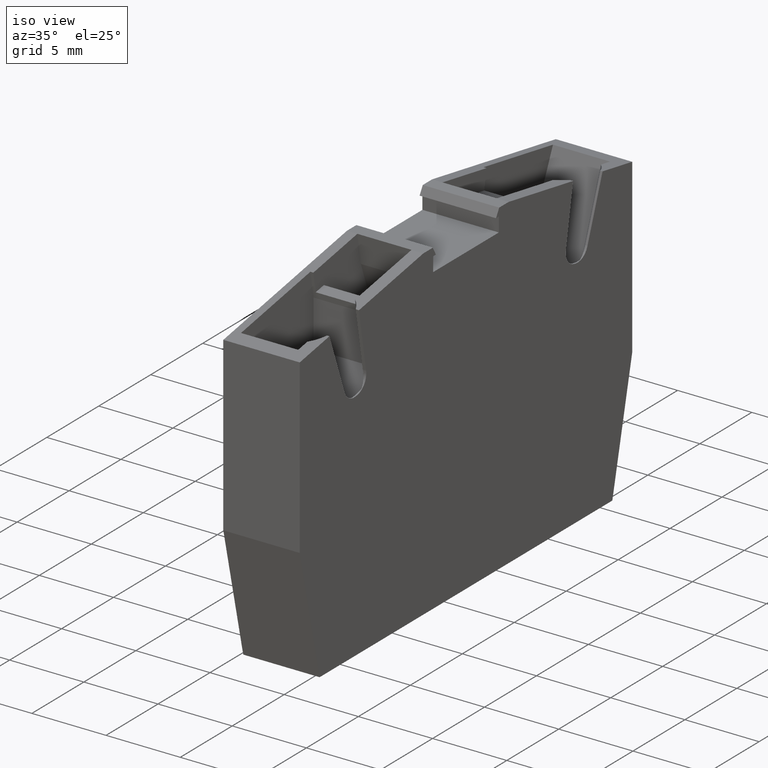
[diagram: clean part render]
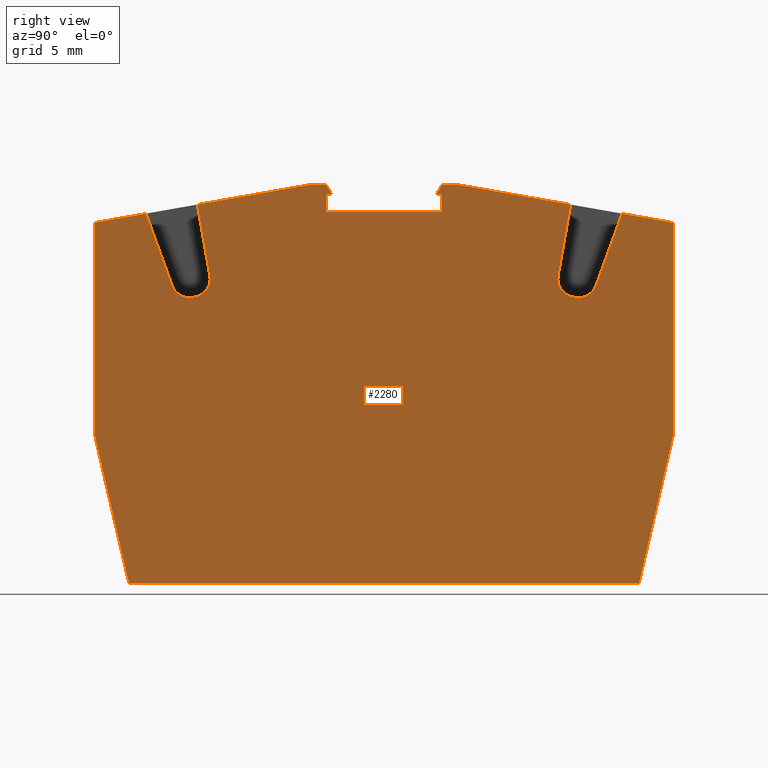
[diagram: tour spotlight — one face highlighted and labeled with its STEP entity id]
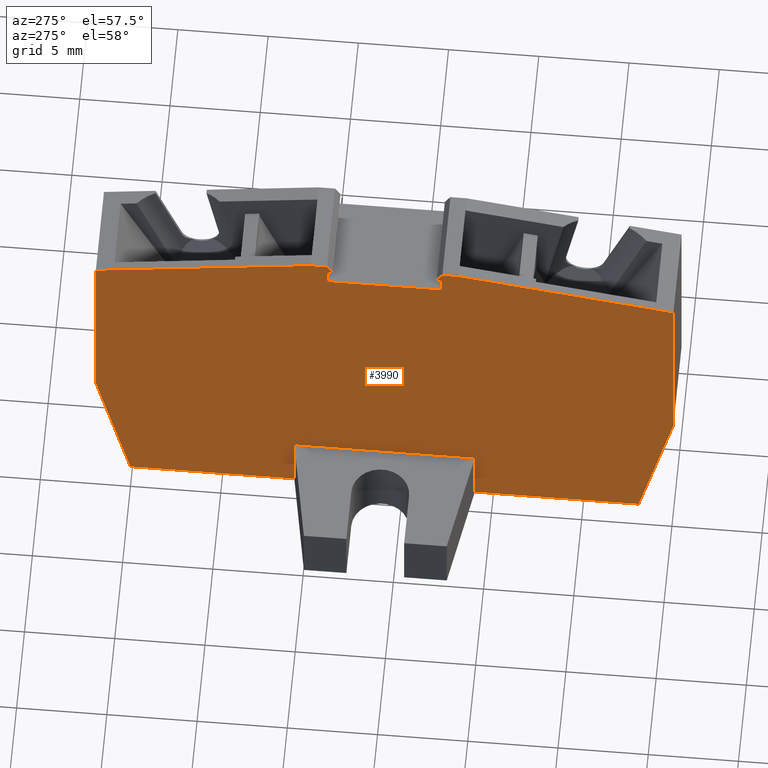
[diagram: tour spotlight — one face highlighted and labeled with its STEP entity id]
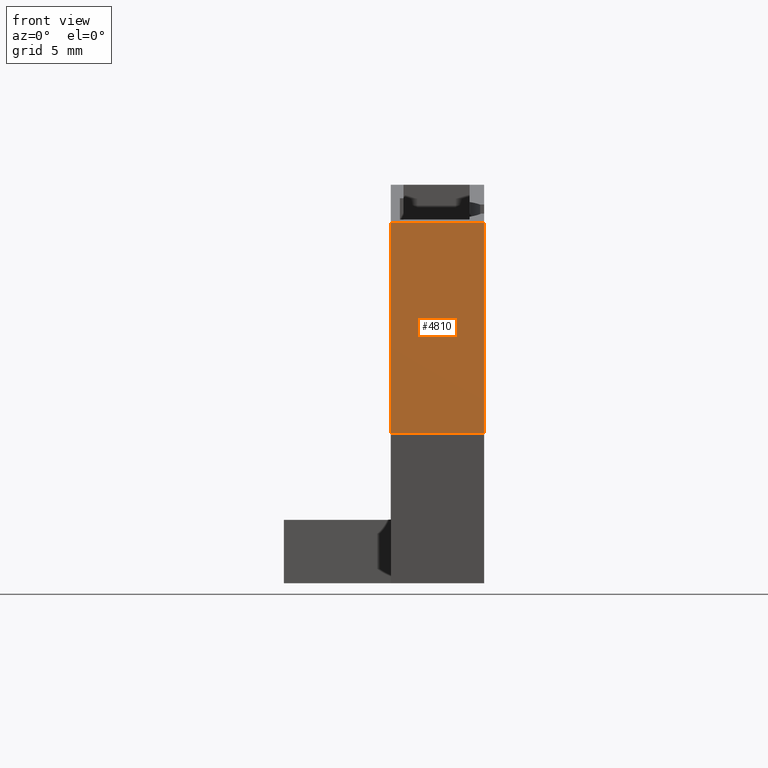
[diagram: tour spotlight — one face highlighted and labeled with its STEP entity id]
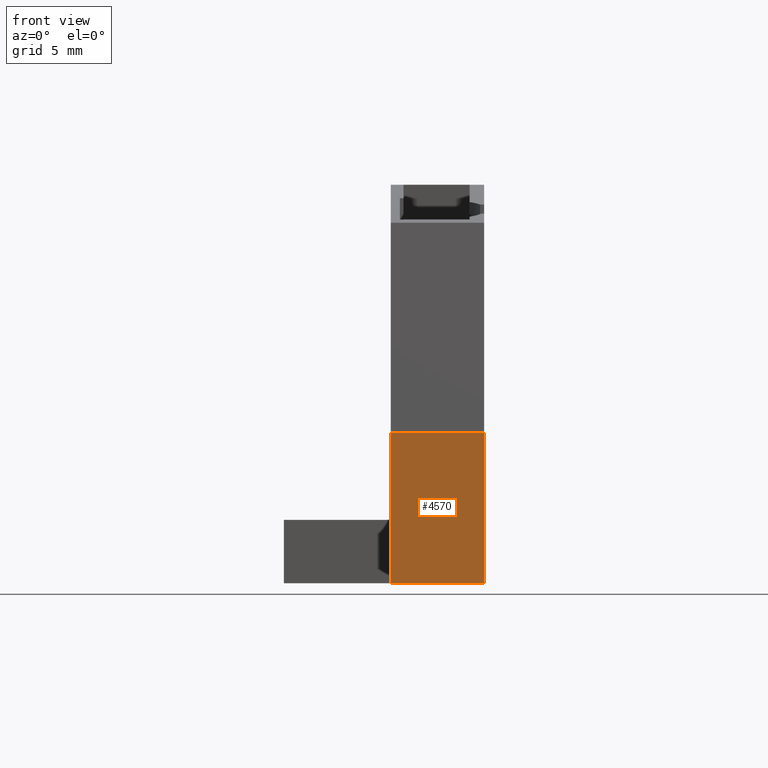
[diagram: tour spotlight — one face highlighted and labeled with its STEP entity id]
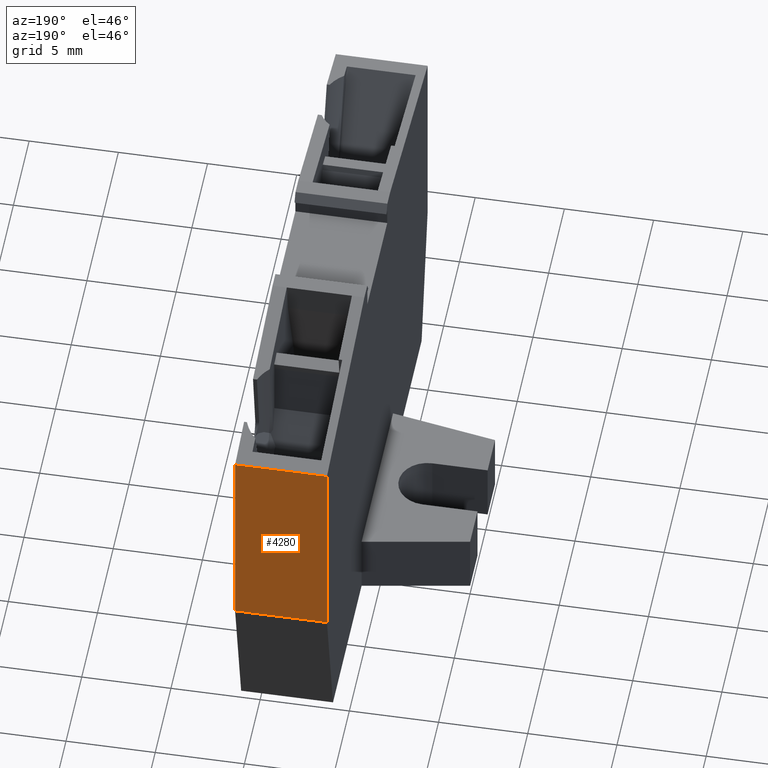
[diagram: tour spotlight — one face highlighted and labeled with its STEP entity id]
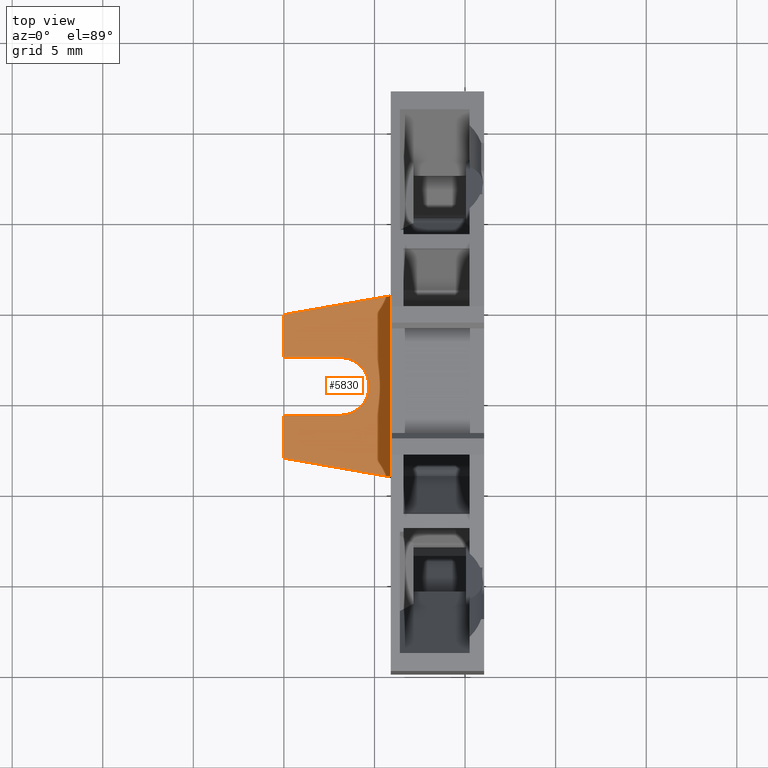
[diagram: tour spotlight — one face highlighted and labeled with its STEP entity id]
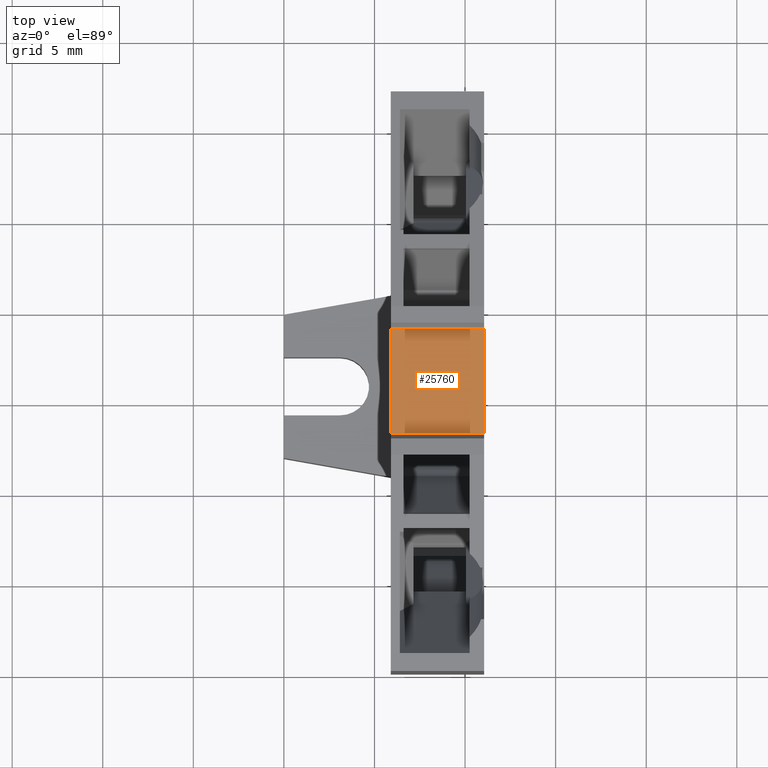
[diagram: tour spotlight — one face highlighted and labeled with its STEP entity id]
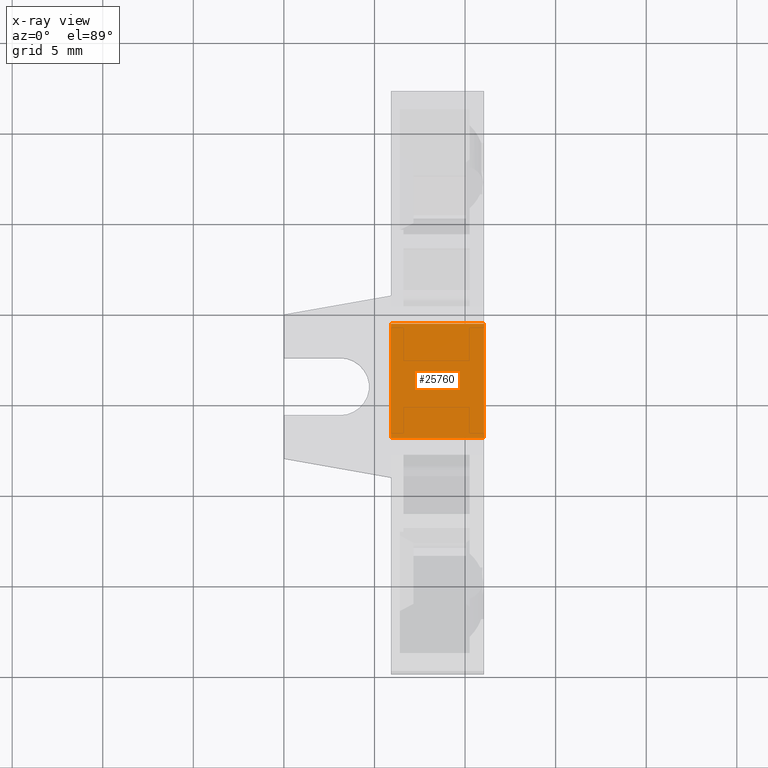
[diagram: x-ray of the same camera — body ghosted, this tour face saturated]
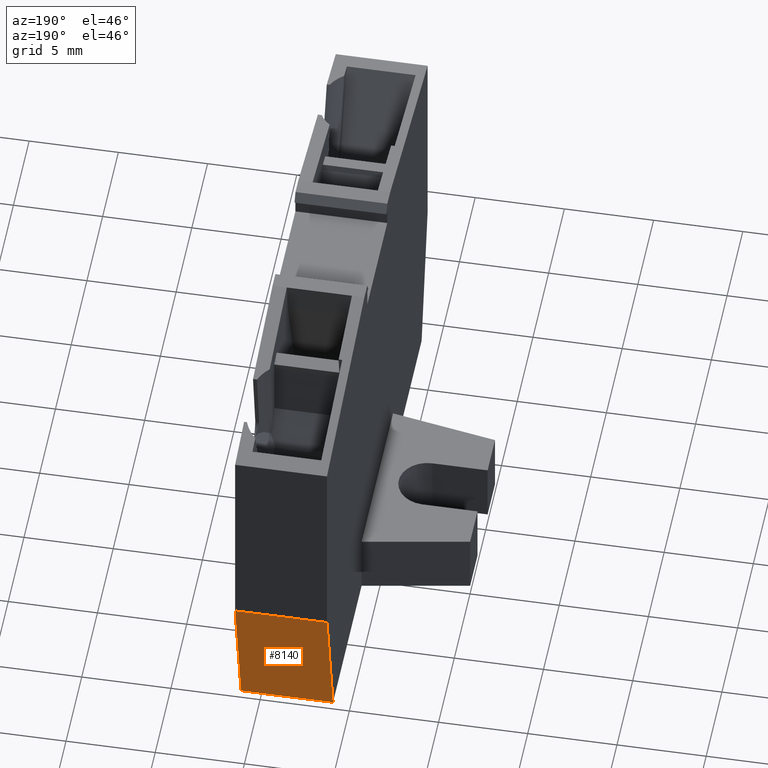
[diagram: tour spotlight — one face highlighted and labeled with its STEP entity id]
A machine part: a face-by-face anatomy tour. The part has 100 B-rep faces; the first image is the clean iso view, then the 8 largest visible faces are spotlighted one at a time (largest first), each with its STEP entity span.

Face 1 — right view, entity #2280. In plain terms, the highlighted planar face has unit normal (1, 0, -0).
Definition (entity closure, byte-faithful):
#10=CARTESIAN_POINT('',(8.03621504403304,131.836927118989,55.05));
#20=DIRECTION('',(0.,0.,-1.));
#30=DIRECTION('',(-1.,0.,0.));
#40=AXIS2_PLACEMENT_3D('',#10,#20,#30);
#50=PLANE('',#40);
#60=CARTESIAN_POINT('',(30.7687890493698,130.762530668224,55.05));
#70=DIRECTION('',(0.999390827019096,0.0348994967025093,
4.89331365738302E-15));
#80=VECTOR('',#70,1.);
#90=LINE('',#60,#80);
#100=CARTESIAN_POINT('',(0.0190285645123035,129.688725370406,55.05));
#110=VERTEX_POINT('',#100);
#120=CARTESIAN_POINT('',(8.53216352631667,129.986010594059,55.05));
#130=VERTEX_POINT('',#120);
#140=EDGE_CURVE('',#110,#130,#90,.T.);
#150=ORIENTED_EDGE('',*,*,#140,.T.);
#160=CARTESIAN_POINT('',(30.7687890493697,137.928098859774,55.05));
#170=DIRECTION('',(0.965925826289066,0.258819045102529,
4.08006961549743E-15));
#180=VECTOR('',#170,1.);
#190=LINE('',#160,#180);
#200=CARTESIAN_POINT('',(-11.187361719647,126.685982143697,55.05));
#210=VERTEX_POINT('',#200);
#220=EDGE_CURVE('',#210,#110,#190,.T.);
#230=ORIENTED_EDGE('',*,*,#220,.T.);
#240=CARTESIAN_POINT('',(-6.72796270864283,75.7148182090423,55.05));
#250=DIRECTION('',(-0.0871557427476667,0.996194698091745,
-3.30958753668609E-15));
#260=VECTOR('',#250,1.);
#270=LINE('',#240,#260);
#280=CARTESIAN_POINT('',(-10.9344408285838,123.795083130384,55.05));
#290=VERTEX_POINT('',#280);
#300=EDGE_CURVE('',#290,#210,#270,.T.);
#310=ORIENTED_EDGE('',*,*,#300,.T.);
#320=CARTESIAN_POINT('',(30.7687890493699,120.146523283648,
55.0500000000001));
#330=DIRECTION('',(0.996194698091747,-0.087155742747645,
5.22947730464687E-15));
#340=VECTOR('',#330,1.);
#350=LINE('',#320,#340);
#360=CARTESIAN_POINT('',(-6.71253439702414,123.425714179156,55.05));
#370=VERTEX_POINT('',#360);
#380=EDGE_CURVE('',#290,#370,#350,.T.);
#390=ORIENTED_EDGE('',*,*,#380,.F.);
#400=CARTESIAN_POINT('',(-6.79969013977176,122.429519481064,
55.0499999999999));
#410=DIRECTION('',(8.93808895116746E-15,-1.82904517099648E-15,-1.));
#420=DIRECTION('',(-1.,-1.31283872661925E-14,-8.93808895116744E-15));
#430=AXIS2_PLACEMENT_3D('',#400,#410,#420);
#440=CIRCLE('',#430,1.);
#450=CARTESIAN_POINT('',(-5.80349544168002,122.516675223812,55.05));
#460=VERTEX_POINT('',#450);
#470=EDGE_CURVE('',#370,#460,#440,.T.);
#480=ORIENTED_EDGE('',*,*,#470,.F.);
#490=CARTESIAN_POINT('',(-1.70886352092586,75.7148182090424,55.05));
#500=DIRECTION('',(0.0871557427476714,-0.996194698091744,
3.30958753668611E-15));
#510=VECTOR('',#500,1.);
#520=LINE('',#490,#510);
#530=CARTESIAN_POINT('',(-5.78947205052692,122.356387129469,55.05));
#540=VERTEX_POINT('',#530);
#550=EDGE_CURVE('',#460,#540,#520,.T.);
#560=ORIENTED_EDGE('',*,*,#550,.F.);
#570=CARTESIAN_POINT('',(-6.78566674861865,122.269231386722,
55.0499999999999));
#580=DIRECTION('',(8.93808895116746E-15,-1.82904517099648E-15,-1.));
#590=DIRECTION('',(-1.,-1.31283872661925E-14,-8.93808895116744E-15));
#600=AXIS2_PLACEMENT_3D('',#570,#580,#590);
#610=CIRCLE('',#600,1.);
#620=CARTESIAN_POINT('',(-6.69851100587099,121.27303668863,55.05));
#630=VERTEX_POINT('',#620);
#640=EDGE_CURVE('',#540,#630,#610,.T.);
#650=ORIENTED_EDGE('',*,*,#640,.F.);
#660=CARTESIAN_POINT('',(30.7687890493699,124.551000696388,
55.0500000000001));
#670=DIRECTION('',(0.996194698091744,0.0871557427476713,
4.72658084365674E-15));
#680=VECTOR('',#670,1.);
#690=LINE('',#660,#680);
#700=CARTESIAN_POINT('',(-10.683289798238,120.924413717639,55.05));
#710=VERTEX_POINT('',#700);
#720=EDGE_CURVE('',#710,#630,#690,.T.);
#730=ORIENTED_EDGE('',*,*,#720,.T.);
#740=CARTESIAN_POINT('',(-10.1342086189277,114.648387119661,55.05));
#750=VERTEX_POINT('',#740);
#760=EDGE_CURVE('',#750,#710,#270,.T.);
#770=ORIENTED_EDGE('',*,*,#760,.T.);
#780=CARTESIAN_POINT('',(0.298009729134481,75.7148182090424,
55.0500000000001));
#790=DIRECTION('',(-0.258819045102529,0.965925826289066,
-4.08006961549745E-15));
#800=VECTOR('',#790,1.);
#810=LINE('',#780,#800);
#820=CARTESIAN_POINT('',(-9.90028486570875,113.775371787551,55.05));
#830=VERTEX_POINT('',#820);
#840=EDGE_CURVE('',#830,#750,#810,.T.);
#850=ORIENTED_EDGE('',*,*,#840,.T.);
#860=CARTESIAN_POINT('',(30.76878904937,102.878126275405,
55.0500000000001));
#870=DIRECTION('',(0.965925826290974,-0.258819045095408,
5.57347874396752E-15));
#880=VECTOR('',#870,1.);
#890=LINE('',#860,#880);
#900=CARTESIAN_POINT('',(-9.30914667773229,113.616976787472,55.05));
#910=VERTEX_POINT('',#900);
#920=EDGE_CURVE('',#830,#910,#890,.T.);
#930=ORIENTED_EDGE('',*,*,#920,.F.);
#940=CARTESIAN_POINT('',(0.846706104788716,75.7148182090424,
55.0500000000001));
#950=DIRECTION('',(-0.258819045103338,0.965925826288849,
-4.08006961550087E-15));
#960=VECTOR('',#950,1.);
#970=LINE('',#940,#960);
#980=CARTESIAN_POINT('',(-9.37962507620819,113.88000575142,55.05));
#990=VERTEX_POINT('',#980);
#1000=EDGE_CURVE('',#910,#990,#970,.T.);
#1010=ORIENTED_EDGE('',*,*,#1000,.F.);
#1020=CARTESIAN_POINT('',(30.7687890493699,124.637740893774,
55.0500000000001));
#1030=DIRECTION('',(0.965925826288977,0.258819045102862,
4.08006961549603E-15));
#1040=VECTOR('',#1030,1.);
#1050=LINE('',#1020,#1040);
#1060=CARTESIAN_POINT('',(-8.4426770247087,114.131060225169,55.05));
#1070=VERTEX_POINT('',#1060);
#1080=EDGE_CURVE('',#990,#1070,#1050,.T.);
#1090=ORIENTED_EDGE('',*,*,#1080,.F.);
#1100=CARTESIAN_POINT('',(22.1386483939732,0.,55.05));
#1110=DIRECTION('',(0.258819045102837,-0.965925826288984,0.));
#1120=VECTOR('',#1110,1.);
#1130=LINE('',#1100,#1120);
#1140=CARTESIAN_POINT('',(-6.80564656443313,108.021579373891,55.05));
#1150=VERTEX_POINT('',#1140);
#1160=EDGE_CURVE('',#1070,#1150,#1130,.T.);
#1170=ORIENTED_EDGE('',*,*,#1160,.F.);
#1180=CARTESIAN_POINT('',(30.7687890493699,118.089619052634,
55.0500000000001));
#1190=DIRECTION('',(-0.965925826289265,-0.258819045101788,
-4.08006961550056E-15));
#1200=VECTOR('',#1190,1.);
#1210=LINE('',#1180,#1200);
#1220=CARTESIAN_POINT('',(-7.74259461593612,107.770524900141,55.05));
#1230=VERTEX_POINT('',#1220);
#1240=EDGE_CURVE('',#1150,#1230,#1210,.T.);
#1250=ORIENTED_EDGE('',*,*,#1240,.F.);
#1260=CARTESIAN_POINT('',(0.846706104709792,75.7148182090424,
55.0500000000001));
#1270=DIRECTION('',(-0.258819045101311,0.965925826289392,
-4.08006961549231E-15));
#1280=VECTOR('',#1270,1.);
#1290=LINE('',#1260,#1280);
#1300=CARTESIAN_POINT('',(-7.81307301441147,108.033553864089,55.05));
#1310=VERTEX_POINT('',#1300);
#1320=EDGE_CURVE('',#1230,#1310,#1290,.T.);
#1330=ORIENTED_EDGE('',*,*,#1320,.F.);
#1340=CARTESIAN_POINT('',(30.7687890493697,146.61541592727,55.05));
#1350=DIRECTION('',(-0.707106781192042,-0.707106781181053,
-1.49340912852441E-15));
#1360=VECTOR('',#1350,1.);
#1370=LINE('',#1340,#1360);
#1380=CARTESIAN_POINT('',(-8.24581620230586,107.600810676201,55.05));
#1390=VERTEX_POINT('',#1380);
#1400=EDGE_CURVE('',#1310,#1390,#1370,.T.);
#1410=ORIENTED_EDGE('',*,*,#1400,.F.);
#1420=CARTESIAN_POINT('',(0.298009729134463,75.7148182090424,
55.0500000000001));
#1430=DIRECTION('',(0.258819045102529,-0.965925826289066,
4.08006961549745E-15));
#1440=VECTOR('',#1430,1.);
#1450=LINE('',#1420,#1440);
#1460=CARTESIAN_POINT('',(-8.01189244908689,106.727795344091,55.05));
#1470=VERTEX_POINT('',#1460);
#1480=EDGE_CURVE('',#1390,#1470,#1450,.T.);
#1490=ORIENTED_EDGE('',*,*,#1480,.F.);
#1500=CARTESIAN_POINT('',(6.44969629117224,75.7148182090424,
55.0500000000001));
#1510=DIRECTION('',(0.422618261740707,-0.906307787036646,
4.72658084365677E-15));
#1520=VECTOR('',#1510,1.);
#1530=LINE('',#1500,#1520);
#1540=CARTESIAN_POINT('',(-5.34939740011803,101.018056285755,55.05));
#1550=VERTEX_POINT('',#1540);
#1560=EDGE_CURVE('',#1470,#1550,#1530,.T.);
#1570=ORIENTED_EDGE('',*,*,#1560,.F.);
#1580=CARTESIAN_POINT('',(30.7687890493699,117.860243225821,
55.0500000000001));
#1590=DIRECTION('',(0.906307787036652,0.422618261740696,
3.30958753668613E-15));
#1600=VECTOR('',#1590,1.);
#1610=LINE('',#1580,#1600);
#1620=CARTESIAN_POINT('',(-1.72416625197234,102.708529332717,55.05));
#1630=VERTEX_POINT('',#1620);
#1640=EDGE_CURVE('',#1550,#1630,#1610,.T.);
#1650=ORIENTED_EDGE('',*,*,#1640,.F.);
#1660=CARTESIAN_POINT('',(-1.30154799023164,101.80222154568,55.05));
#1670=DIRECTION('',(-8.93808895116748E-15,1.82904517099655E-15,1.));
#1680=DIRECTION('',(-0.866025403784441,-0.499999999999996,
-6.8260895074978E-15));
#1690=AXIS2_PLACEMENT_3D('',#1660,#1670,#1680);
#1700=CIRCLE('',#1690,1.);
#1710=CARTESIAN_POINT('',(-0.395240203195002,102.224839807421,55.05));
#1720=VERTEX_POINT('',#1710);
#1730=EDGE_CURVE('',#1720,#1630,#1700,.T.);
#1740=ORIENTED_EDGE('',*,*,#1730,.T.);
#1750=CARTESIAN_POINT('',(11.9665858859831,75.7148182090425,
55.0500000000001));
#1760=DIRECTION('',(-0.422618261740695,0.906307787036652,
-4.72658084365673E-15));
#1770=VECTOR('',#1760,1.);
#1780=LINE('',#1750,#1770);
#1790=CARTESIAN_POINT('',(-0.327240769009705,102.07901455022,55.05));
#1800=VERTEX_POINT('',#1790);
#1810=EDGE_CURVE('',#1800,#1720,#1780,.T.);
#1820=ORIENTED_EDGE('',*,*,#1810,.T.);
#1830=CARTESIAN_POINT('',(-1.23354855604632,101.656396288479,55.05));
#1840=DIRECTION('',(-8.93808895116748E-15,1.82904517099655E-15,1.));
#1850=DIRECTION('',(-0.866025403784441,-0.499999999999996,
-6.8260895074978E-15));
#1860=AXIS2_PLACEMENT_3D('',#1830,#1840,#1850);
#1870=CIRCLE('',#1860,1.);
#1880=CARTESIAN_POINT('',(-0.659972119695289,100.83724424419,55.05));
#1890=VERTEX_POINT('',#1880);
#1900=EDGE_CURVE('',#1890,#1800,#1870,.T.);
#1910=ORIENTED_EDGE('',*,*,#1900,.T.);
#1920=CARTESIAN_POINT('',(30.7687890493699,122.843899731362,
55.0500000000001));
#1930=DIRECTION('',(0.819152044288994,0.573576436351043,
2.43854531530466E-15));
#1940=VECTOR('',#1930,1.);
#1950=LINE('',#1920,#1940);
#1960=CARTESIAN_POINT('',(-4.13156586621168,98.4064081332776,55.05));
#1970=VERTEX_POINT('',#1960);
#1980=EDGE_CURVE('',#1970,#1890,#1950,.T.);
#1990=ORIENTED_EDGE('',*,*,#1980,.T.);
#2000=CARTESIAN_POINT('',(-2.9051522763661,95.7763557024469,55.05));
#2010=VERTEX_POINT('',#2000);
#2020=EDGE_CURVE('',#1970,#2010,#1530,.T.);
#2030=ORIENTED_EDGE('',*,*,#2020,.F.);
#2040=CARTESIAN_POINT('',(30.76878904937,104.799261086651,
55.0500000000001));
#2050=DIRECTION('',(0.965925826289066,0.258819045102529,
4.08006961549743E-15));
#2060=VECTOR('',#2050,1.);
#2070=LINE('',#2040,#2060);
#2080=CARTESIAN_POINT('',(8.30123800779333,98.7790989291554,55.05));
#2090=VERTEX_POINT('',#2080);
#2100=EDGE_CURVE('',#2010,#2090,#2070,.T.);
#2110=ORIENTED_EDGE('',*,*,#2100,.F.);
#2120=CARTESIAN_POINT('',(30.76878904937,110.725307724298,
55.0500000000001));
#2130=DIRECTION('',(-0.882947592858923,-0.469471562785898,
-3.05768173377798E-15));
#2140=VECTOR('',#2130,1.);
#2150=LINE('',#2120,#2140);
#2160=CARTESIAN_POINT('',(15.8224717623879,102.778209854204,55.05));
#2170=VERTEX_POINT('',#2160);
#2180=EDGE_CURVE('',#2170,#2090,#2150,.T.);
#2190=ORIENTED_EDGE('',*,*,#2180,.T.);
#2200=CARTESIAN_POINT('',(7.93268530467142,132.22329377527,
55.0499999999999));
#2210=DIRECTION('',(0.25881904510253,-0.965925826289066,
4.08006961549745E-15));
#2220=VECTOR('',#2210,1.);
#2230=LINE('',#2200,#2220);
#2240=EDGE_CURVE('',#130,#2170,#2230,.T.);
#2250=ORIENTED_EDGE('',*,*,#2240,.T.);
#2260=EDGE_LOOP('',(#2250,#2190,#2110,#2030,#1990,#1910,#1820,#1740,
#1650,#1570,#1490,#1410,#1330,#1250,#1170,#1090,#1010,#930,#850,#770,
#730,#650,#560,#480,#390,#310,#230,#150));
#2270=FACE_OUTER_BOUND('',#2260,.T.);
#2280=ADVANCED_FACE('',(#2270),#50,.T.);

Face 2 — auxiliary view, entity #3990. In plain terms, the highlighted planar face has unit normal (-1, -0, 0).
Definition (entity closure, byte-faithful):
#2360=CARTESIAN_POINT('',(8.03621504403304,131.836927118989,60.2));
#2370=DIRECTION('',(0.,0.,1.));
#2380=DIRECTION('',(1.,0.,0.));
#2390=AXIS2_PLACEMENT_3D('',#2360,#2370,#2380);
#2400=PLANE('',#2390);
#2410=CARTESIAN_POINT('',(30.7687890493699,110.725307724298,
60.2000000000001));
#2420=DIRECTION('',(-0.882947592858923,-0.469471562785898,
-3.05768173377798E-15));
#2430=VECTOR('',#2420,1.);
#2440=LINE('',#2410,#2430);
#2450=CARTESIAN_POINT('',(15.8224717623879,102.778209854204,
60.2000000000001));
#2460=VERTEX_POINT('',#2450);
#2470=CARTESIAN_POINT('',(8.30123800779358,98.7790989291556,60.2));
#2480=VERTEX_POINT('',#2470);
#2490=EDGE_CURVE('',#2460,#2480,#2440,.T.);
#2500=ORIENTED_EDGE('',*,*,#2490,.F.);
#2510=CARTESIAN_POINT('',(30.76878904937,104.799261086651,
60.2000000000001));
#2520=DIRECTION('',(-0.965925826289066,-0.258819045102529,
-4.08006961549743E-15));
#2530=VECTOR('',#2520,1.);
#2540=LINE('',#2510,#2530);
#2550=CARTESIAN_POINT('',(-2.90515227636619,95.7763557024469,60.2));
#2560=VERTEX_POINT('',#2550);
#2570=EDGE_CURVE('',#2480,#2560,#2540,.T.);
#2580=ORIENTED_EDGE('',*,*,#2570,.F.);
#2590=CARTESIAN_POINT('',(6.44969629117222,75.7148182090425,
60.2000000000001));
#2600=DIRECTION('',(-0.422618261740707,0.906307787036646,
-4.72658084365677E-15));
#2610=VECTOR('',#2600,1.);
#2620=LINE('',#2590,#2610);
#2630=CARTESIAN_POINT('',(-8.01189244908687,106.727795344091,
60.1999999999999));
#2640=VERTEX_POINT('',#2630);
#2650=EDGE_CURVE('',#2560,#2640,#2620,.T.);
#2660=ORIENTED_EDGE('',*,*,#2650,.F.);
#2670=CARTESIAN_POINT('',(0.298009729134439,75.7148182090424,
60.2000000000001));
#2680=DIRECTION('',(0.258819045102529,-0.965925826289066,
4.08006961549745E-15));
#2690=VECTOR('',#2680,1.);
#2700=LINE('',#2670,#2690);
#2710=CARTESIAN_POINT('',(-8.2458162023059,107.600810676201,
60.1999999999999));
#2720=VERTEX_POINT('',#2710);
#2730=EDGE_CURVE('',#2720,#2640,#2700,.T.);
#2740=ORIENTED_EDGE('',*,*,#2730,.T.);
#2750=CARTESIAN_POINT('',(30.7687890493696,146.61541592727,60.2));
#2760=DIRECTION('',(-0.707106781192042,-0.707106781181053,
-1.49340912852441E-15));
#2770=VECTOR('',#2760,1.);
#2780=LINE('',#2750,#2770);
#2790=CARTESIAN_POINT('',(-7.81307301441136,108.033553864089,
60.1999999999999));
#2800=VERTEX_POINT('',#2790);
#2810=EDGE_CURVE('',#2800,#2720,#2780,.T.);
#2820=ORIENTED_EDGE('',*,*,#2810,.T.);
#2830=CARTESIAN_POINT('',(0.846706104709885,75.7148182090424,
60.2000000000001));
#2840=DIRECTION('',(-0.258819045101311,0.965925826289392,
-4.08006961549231E-15));
#2850=VECTOR('',#2840,1.);
#2860=LINE('',#2830,#2850);
#2870=CARTESIAN_POINT('',(-7.74259461593615,107.770524900141,60.2));
#2880=VERTEX_POINT('',#2870);
#2890=EDGE_CURVE('',#2880,#2800,#2860,.T.);
#2900=ORIENTED_EDGE('',*,*,#2890,.T.);
#2910=CARTESIAN_POINT('',(30.7687890493699,118.089619052634,
60.2000000000001));
#2920=DIRECTION('',(-0.965925826289265,-0.258819045101788,
-4.08006961550056E-15));
#2930=VECTOR('',#2920,1.);
#2940=LINE('',#2910,#2930);
#2950=CARTESIAN_POINT('',(-6.80564656443304,108.021579373891,
60.1999999999999));
#2960=VERTEX_POINT('',#2950);
#2970=EDGE_CURVE('',#2960,#2880,#2940,.T.);
#2980=ORIENTED_EDGE('',*,*,#2970,.T.);
#2990=CARTESIAN_POINT('',(1.85092399976458,75.7148182090424,
60.2000000000001));
#3000=DIRECTION('',(0.258819045102837,-0.965925826288984,
4.08006961549875E-15));
#3010=VECTOR('',#3000,1.);
#3020=LINE('',#2990,#3010);
#3030=CARTESIAN_POINT('',(-8.44267702470861,114.131060225169,
60.1999999999999));
#3040=VERTEX_POINT('',#3030);
#3050=EDGE_CURVE('',#3040,#2960,#3020,.T.);
#3060=ORIENTED_EDGE('',*,*,#3050,.T.);
#3070=CARTESIAN_POINT('',(30.7687890493698,124.637740893774,
60.2000000000001));
#3080=DIRECTION('',(0.965925826288977,0.258819045102862,
4.08006961549603E-15));
#3090=VECTOR('',#3080,1.);
#3100=LINE('',#3070,#3090);
#3110=CARTESIAN_POINT('',(-9.37962507620809,113.88000575142,
60.1999999999999));
#3120=VERTEX_POINT('',#3110);
#3130=EDGE_CURVE('',#3120,#3040,#3100,.T.);
#3140=ORIENTED_EDGE('',*,*,#3130,.T.);
#3150=CARTESIAN_POINT('',(0.846706104788808,75.7148182090424,
60.2000000000001));
#3160=DIRECTION('',(-0.258819045103338,0.965925826288849,
-4.08006961550087E-15));
#3170=VECTOR('',#3160,1.);
#3180=LINE('',#3150,#3170);
#3190=CARTESIAN_POINT('',(-9.30914667773219,113.616976787472,
60.1999999999999));
#3200=VERTEX_POINT('',#3190);
#3210=EDGE_CURVE('',#3200,#3120,#3180,.T.);
#3220=ORIENTED_EDGE('',*,*,#3210,.T.);
#3230=CARTESIAN_POINT('',(30.76878904937,102.878126275405,
60.2000000000001));
#3240=DIRECTION('',(0.965925826290974,-0.258819045095408,
5.57347874396752E-15));
#3250=VECTOR('',#3240,1.);
#3260=LINE('',#3230,#3250);
#3270=CARTESIAN_POINT('',(-9.90028486570879,113.775371787551,
60.1999999999999));
#3280=VERTEX_POINT('',#3270);
#3290=EDGE_CURVE('',#3280,#3200,#3260,.T.);
#3300=ORIENTED_EDGE('',*,*,#3290,.T.);
#3310=CARTESIAN_POINT('',(0.298009729134456,75.7148182090424,
60.2000000000001));
#3320=DIRECTION('',(-0.258819045102529,0.965925826289066,
-4.08006961549745E-15));
#3330=VECTOR('',#3320,1.);
#3340=LINE('',#3310,#3330);
#3350=CARTESIAN_POINT('',(-10.1342086189277,114.648387119661,
60.1999999999999));
#3360=VERTEX_POINT('',#3350);
#3370=EDGE_CURVE('',#3280,#3360,#3340,.T.);
#3380=ORIENTED_EDGE('',*,*,#3370,.F.);
#3390=CARTESIAN_POINT('',(-6.72796270864285,75.7148182090423,60.2));
#3400=DIRECTION('',(0.0871557427476667,-0.996194698091745,
3.30958753668609E-15));
#3410=VECTOR('',#3400,1.);
#3420=LINE('',#3390,#3410);
#3430=CARTESIAN_POINT('',(-11.187361719647,126.685982143697,
60.1999999999999));
#3440=VERTEX_POINT('',#3430);
#3450=EDGE_CURVE('',#3440,#3360,#3420,.T.);
#3460=ORIENTED_EDGE('',*,*,#3450,.T.);
#3470=CARTESIAN_POINT('',(30.7687890493697,137.928098859774,60.2));
#3480=DIRECTION('',(-0.965925826289066,-0.258819045102529,
-4.08006961549743E-15));
#3490=VECTOR('',#3480,1.);
#3500=LINE('',#3470,#3490);
#3510=CARTESIAN_POINT('',(0.0190285645123112,129.688725370406,
60.1999999999999));
#3520=VERTEX_POINT('',#3510);
#3530=EDGE_CURVE('',#3520,#3440,#3500,.T.);
#3540=ORIENTED_EDGE('',*,*,#3530,.T.);
#3550=CARTESIAN_POINT('',(30.7687890493698,130.762530668224,60.2));
#3560=DIRECTION('',(-0.999390827019096,-0.0348994967025093,
-4.89331365738302E-15));
#3570=VECTOR('',#3560,1.);
#3580=LINE('',#3550,#3570);
#3590=CARTESIAN_POINT('',(8.53216352631667,129.986010594059,60.2));
#3600=VERTEX_POINT('',#3590);
#3610=EDGE_CURVE('',#3600,#3520,#3580,.T.);
#3620=ORIENTED_EDGE('',*,*,#3610,.T.);
#3630=CARTESIAN_POINT('',(43.3618100923386,2.74269496003399E-12,
60.2000000000005));
#3640=DIRECTION('',(0.25881904510253,-0.965925826289066,
4.08006961549745E-15));
#3650=VECTOR('',#3640,1.);
#3660=LINE('',#3630,#3650);
#3670=CARTESIAN_POINT('',(10.8832224188404,121.211739355575,60.2));
#3680=VERTEX_POINT('',#3670);
#3690=EDGE_CURVE('',#3600,#3680,#3660,.T.);
#3700=ORIENTED_EDGE('',*,*,#3690,.F.);
#3710=CARTESIAN_POINT('',(30.7687890493702,126.54006087526,
60.2000000000001));
#3720=DIRECTION('',(-0.965925826289068,-0.25881904510252,
-4.08006961549747E-15));
#3730=VECTOR('',#3720,1.);
#3740=LINE('',#3710,#3730);
#3750=CARTESIAN_POINT('',(7.50248202682872,120.305872697716,60.2));
#3760=VERTEX_POINT('',#3750);
#3770=EDGE_CURVE('',#3680,#3760,#3740,.T.);
#3780=ORIENTED_EDGE('',*,*,#3770,.F.);
#3790=CARTESIAN_POINT('',(19.4506190667209,75.7148182090427,
60.2000000000002));
#3800=DIRECTION('',(-0.258819045102522,0.965925826289068,
-4.08006961549742E-15));
#3810=VECTOR('',#3800,1.);
#3820=LINE('',#3790,#3810);
#3830=CARTESIAN_POINT('',(10.090672477854,110.646614434825,60.2));
#3840=VERTEX_POINT('',#3830);
#3850=EDGE_CURVE('',#3840,#3760,#3820,.T.);
#3860=ORIENTED_EDGE('',*,*,#3850,.T.);
#3870=CARTESIAN_POINT('',(30.7687890493703,116.187299071159,
60.2000000000001));
#3880=DIRECTION('',(0.965925826289068,0.258819045102522,
4.08006961549746E-15));
#3890=VECTOR('',#3880,1.);
#3900=LINE('',#3870,#3890);
#3910=CARTESIAN_POINT('',(13.4714128698657,111.552481092684,60.2));
#3920=VERTEX_POINT('',#3910);
#3930=EDGE_CURVE('',#3840,#3920,#3900,.T.);
#3940=ORIENTED_EDGE('',*,*,#3930,.F.);
#3950=EDGE_CURVE('',#3920,#2460,#3660,.T.);
#3960=ORIENTED_EDGE('',*,*,#3950,.F.);
#3970=EDGE_LOOP('',(#3960,#3940,#3860,#3780,#3700,#3620,#3540,#3460,
#3380,#3300,#3220,#3140,#3060,#2980,#2900,#2820,#2740,#2660,#2580,#2500)
);
#3980=FACE_OUTER_BOUND('',#3970,.T.);
#3990=ADVANCED_FACE('',(#3980),#2400,.T.);

Face 3 — front view, entity #4810. In plain terms, the highlighted planar face has unit normal (0, -1, 0).
Definition (entity closure, byte-faithful):
#100=CARTESIAN_POINT('',(0.0190285645123035,129.688725370406,55.05));
#110=VERTEX_POINT('',#100);
#160=CARTESIAN_POINT('',(30.7687890493697,137.928098859774,55.05));
#170=DIRECTION('',(0.965925826289066,0.258819045102529,
4.08006961549743E-15));
#180=VECTOR('',#170,1.);
#190=LINE('',#160,#180);
#200=CARTESIAN_POINT('',(-11.187361719647,126.685982143697,55.05));
#210=VERTEX_POINT('',#200);
#220=EDGE_CURVE('',#210,#110,#190,.T.);
#3430=CARTESIAN_POINT('',(-11.187361719647,126.685982143697,
60.1999999999999));
#3440=VERTEX_POINT('',#3430);
#3470=CARTESIAN_POINT('',(30.7687890493697,137.928098859774,60.2));
#3480=DIRECTION('',(-0.965925826289066,-0.258819045102529,
-4.08006961549743E-15));
#3490=VECTOR('',#3480,1.);
#3500=LINE('',#3470,#3490);
#3510=CARTESIAN_POINT('',(0.0190285645123112,129.688725370406,
60.1999999999999));
#3520=VERTEX_POINT('',#3510);
#3530=EDGE_CURVE('',#3520,#3440,#3500,.T.);
#4480=CARTESIAN_POINT('',(0.0190285645127588,129.688725370405,
1.19999999999991));
#4490=DIRECTION('',(-4.99704433650116E-15,2.8850448928314E-15,1.));
#4500=VECTOR('',#4490,1.);
#4510=LINE('',#4480,#4500);
#4520=EDGE_CURVE('',#110,#3520,#4510,.T.);
#4650=CARTESIAN_POINT('',(-1.41408189679332,129.304724579634,
60.7150023999999));
#4660=DIRECTION('',(-0.258819045102529,0.965925826289066,
-4.08006961549745E-15));
#4670=DIRECTION('',(-0.965925826289066,-0.258819045102529,
-4.08006961549743E-15));
#4680=AXIS2_PLACEMENT_3D('',#4650,#4660,#4670);
#4690=PLANE('',#4680);
#4700=CARTESIAN_POINT('',(-11.1873617196467,126.685982143697,
1.19999999999986));
#4710=DIRECTION('',(-4.99704433650116E-15,2.8850448928314E-15,1.));
#4720=VECTOR('',#4710,1.);
#4730=LINE('',#4700,#4720);
#4740=EDGE_CURVE('',#210,#3440,#4730,.T.);
#4750=ORIENTED_EDGE('',*,*,#4740,.T.);
#4760=ORIENTED_EDGE('',*,*,#220,.F.);
#4770=ORIENTED_EDGE('',*,*,#4520,.F.);
#4780=ORIENTED_EDGE('',*,*,#3530,.F.);
#4790=EDGE_LOOP('',(#4780,#4770,#4760,#4750));
#4800=FACE_OUTER_BOUND('',#4790,.T.);
#4810=ADVANCED_FACE('',(#4800),#4690,.T.);

Face 4 — front view, entity #4570. In plain terms, the highlighted planar face has unit normal (-0, 0.9744, 0.225).
Definition (entity closure, byte-faithful):
#60=CARTESIAN_POINT('',(30.7687890493698,130.762530668224,55.05));
#70=DIRECTION('',(0.999390827019096,0.0348994967025093,
4.89331365738302E-15));
#80=VECTOR('',#70,1.);
#90=LINE('',#60,#80);
#100=CARTESIAN_POINT('',(0.0190285645123035,129.688725370406,55.05));
#110=VERTEX_POINT('',#100);
#120=CARTESIAN_POINT('',(8.53216352631667,129.986010594059,55.05));
#130=VERTEX_POINT('',#120);
#140=EDGE_CURVE('',#110,#130,#90,.T.);
#3510=CARTESIAN_POINT('',(0.0190285645123112,129.688725370406,
60.1999999999999));
#3520=VERTEX_POINT('',#3510);
#3550=CARTESIAN_POINT('',(30.7687890493698,130.762530668224,60.2));
#3560=DIRECTION('',(-0.999390827019096,-0.0348994967025093,
-4.89331365738302E-15));
#3570=VECTOR('',#3560,1.);
#3580=LINE('',#3550,#3570);
#3590=CARTESIAN_POINT('',(8.53216352631667,129.986010594059,60.2));
#3600=VERTEX_POINT('',#3590);
#3610=EDGE_CURVE('',#3600,#3520,#3580,.T.);
#4360=CARTESIAN_POINT('',(8.53216352631659,129.986010594059,
55.0499999999999));
#4370=DIRECTION('',(0.0348994967025093,-0.999390827019096,
3.057681733778E-15));
#4380=DIRECTION('',(0.999390827019096,0.0348994967025093,
4.89331365738302E-15));
#4390=AXIS2_PLACEMENT_3D('',#4360,#4370,#4380);
#4400=PLANE('',#4390);
#4410=CARTESIAN_POINT('',(8.53216352631697,129.986010594059,
-4.46309655899313E-14));
#4420=DIRECTION('',(-4.99704433650116E-15,2.8850448928314E-15,1.));
#4430=VECTOR('',#4420,1.);
#4440=LINE('',#4410,#4430);
#4450=EDGE_CURVE('',#130,#3600,#4440,.T.);
#4460=ORIENTED_EDGE('',*,*,#4450,.F.);
#4470=ORIENTED_EDGE('',*,*,#3610,.F.);
#4480=CARTESIAN_POINT('',(0.0190285645127588,129.688725370405,
1.19999999999991));
#4490=DIRECTION('',(-4.99704433650116E-15,2.8850448928314E-15,1.));
#4500=VECTOR('',#4490,1.);
#4510=LINE('',#4480,#4500);
#4520=EDGE_CURVE('',#110,#3520,#4510,.T.);
#4530=ORIENTED_EDGE('',*,*,#4520,.T.);
#4540=ORIENTED_EDGE('',*,*,#140,.F.);
#4550=EDGE_LOOP('',(#4540,#4530,#4470,#4460));
#4560=FACE_OUTER_BOUND('',#4550,.T.);
#4570=ADVANCED_FACE('',(#4560),#4400,.F.);

Face 5 — auxiliary view, entity #4280. In plain terms, the highlighted planar face has unit normal (0, -1, 0).
Definition (entity closure, byte-faithful):
#2000=CARTESIAN_POINT('',(-2.9051522763661,95.7763557024469,55.05));
#2010=VERTEX_POINT('',#2000);
#2040=CARTESIAN_POINT('',(30.76878904937,104.799261086651,
55.0500000000001));
#2050=DIRECTION('',(0.965925826289066,0.258819045102529,
4.08006961549743E-15));
#2060=VECTOR('',#2050,1.);
#2070=LINE('',#2040,#2060);
#2080=CARTESIAN_POINT('',(8.30123800779333,98.7790989291554,55.05));
#2090=VERTEX_POINT('',#2080);
#2100=EDGE_CURVE('',#2010,#2090,#2070,.T.);
#2470=CARTESIAN_POINT('',(8.30123800779358,98.7790989291556,60.2));
#2480=VERTEX_POINT('',#2470);
#2510=CARTESIAN_POINT('',(30.76878904937,104.799261086651,
60.2000000000001));
#2520=DIRECTION('',(-0.965925826289066,-0.258819045102529,
-4.08006961549743E-15));
#2530=VECTOR('',#2520,1.);
#2540=LINE('',#2510,#2530);
#2550=CARTESIAN_POINT('',(-2.90515227636619,95.7763557024469,60.2));
#2560=VERTEX_POINT('',#2550);
#2570=EDGE_CURVE('',#2480,#2560,#2540,.T.);
#4070=CARTESIAN_POINT('',(6.86812754648756,98.395098138384,60.7150024));
#4080=DIRECTION('',(-0.258819045102529,0.965925826289066,
-4.08006961549745E-15));
#4090=DIRECTION('',(-0.965925826289066,-0.258819045102529,
-4.08006961549743E-15));
#4100=AXIS2_PLACEMENT_3D('',#4070,#4080,#4090);
#4110=PLANE('',#4100);
#4120=ORIENTED_EDGE('',*,*,#2570,.T.);
#4130=CARTESIAN_POINT('',(8.30123800779365,98.7790989291553,
1.20000000000004));
#4140=DIRECTION('',(4.99704433650116E-15,-2.8850448928314E-15,-1.));
#4150=VECTOR('',#4140,1.);
#4160=LINE('',#4130,#4150);
#4170=EDGE_CURVE('',#2480,#2090,#4160,.T.);
#4180=ORIENTED_EDGE('',*,*,#4170,.F.);
#4190=ORIENTED_EDGE('',*,*,#2100,.T.);
#4200=CARTESIAN_POINT('',(-2.90515227636582,95.7763557024468,
1.19999999999999));
#4210=DIRECTION('',(-4.99704433650116E-15,2.8850448928314E-15,1.));
#4220=VECTOR('',#4210,1.);
#4230=LINE('',#4200,#4220);
#4240=EDGE_CURVE('',#2010,#2560,#4230,.T.);
#4250=ORIENTED_EDGE('',*,*,#4240,.F.);
#4260=EDGE_LOOP('',(#4250,#4190,#4180,#4120));
#4270=FACE_OUTER_BOUND('',#4260,.T.);
#4280=ADVANCED_FACE('',(#4270),#4110,.F.);

Face 6 — top view, entity #5830. In plain terms, the highlighted planar face has unit normal (0, 0, 1).
Definition (entity closure, byte-faithful):
#3750=CARTESIAN_POINT('',(7.50248202682872,120.305872697716,60.2));
#3760=VERTEX_POINT('',#3750);
#3790=CARTESIAN_POINT('',(19.4506190667209,75.7148182090427,
60.2000000000002));
#3800=DIRECTION('',(-0.258819045102522,0.965925826289068,
-4.08006961549742E-15));
#3810=VECTOR('',#3800,1.);
#3820=LINE('',#3790,#3810);
#3830=CARTESIAN_POINT('',(10.090672477854,110.646614434825,60.2));
#3840=VERTEX_POINT('',#3830);
#3850=EDGE_CURVE('',#3840,#3760,#3820,.T.);
#5030=CARTESIAN_POINT('',(12.8380066803751,100.393423605644,
-3.33066907387547E-15));
#5040=DIRECTION('',(-0.044943455527548,0.167731259496521,
0.984807753012208));
#5050=VECTOR('',#5040,1.);
#5060=LINE('',#5030,#5050);
#5070=CARTESIAN_POINT('',(9.82141547129461,111.651495263598,66.1));
#5080=VERTEX_POINT('',#5070);
#5090=EDGE_CURVE('',#3840,#5080,#5060,.T.);
#5270=CARTESIAN_POINT('',(7.73734055494964,119.429368738178,
62.4492153943807));
#5280=DIRECTION('',(-0.965925826289068,-0.258819045102522,
-6.50419342603801E-30));
#5290=DIRECTION('',(-0.258819045102522,0.965925826289068,0.));
#5300=AXIS2_PLACEMENT_3D('',#5270,#5280,#5290);
#5310=PLANE('',#5300);
#5320=ORIENTED_EDGE('',*,*,#3850,.F.);
#5330=CARTESIAN_POINT('',(4.75514782430762,130.559063526896,
-3.5527136788005E-15));
#5340=DIRECTION('',(-0.044943455527548,0.167731259496521,
-0.984807753012208));
#5350=VECTOR('',#5340,1.);
#5360=LINE('',#5330,#5350);
#5370=CARTESIAN_POINT('',(7.7717390333881,119.300991868942,66.1));
#5380=VERTEX_POINT('',#5370);
#5390=EDGE_CURVE('',#5380,#3760,#5360,.T.);
#5400=ORIENTED_EDGE('',*,*,#5390,.T.);
#5410=CARTESIAN_POINT('',(39.7383434609032,0.,66.1));
#5420=DIRECTION('',(-0.258819045102522,0.965925826289068,0.));
#5430=VECTOR('',#5420,1.);
#5440=LINE('',#5410,#5430);
#5450=CARTESIAN_POINT('',(8.38246678017729,117.021724888333,66.1));
#5460=VERTEX_POINT('',#5450);
#5470=EDGE_CURVE('',#5460,#5380,#5440,.T.);
#5480=ORIENTED_EDGE('',*,*,#5470,.T.);
#5490=CARTESIAN_POINT('',(8.38246678017728,117.021724888333,
-3.5527136788005E-15));
#5500=DIRECTION('',(-6.31088724176809E-30,-1.57772181044202E-30,1.));
#5510=VECTOR('',#5500,1.);
#5520=LINE('',#5490,#5510);
#5530=CARTESIAN_POINT('',(8.38246678017728,117.021724888333,63.));
#5540=VERTEX_POINT('',#5530);
#5550=EDGE_CURVE('',#5540,#5460,#5520,.T.);
#5560=ORIENTED_EDGE('',*,*,#5550,.T.);
#5570=CARTESIAN_POINT('',(8.7965772523413,115.47624356627,63.));
#5580=DIRECTION('',(-0.965925826289068,-0.258819045102521,0.));
#5590=DIRECTION('',(-0.258819045102521,0.965925826289068,
-2.19303331651441E-27));
#5600=AXIS2_PLACEMENT_3D('',#5570,#5580,#5590);
#5610=CIRCLE('',#5600,1.6);
#5620=CARTESIAN_POINT('',(9.21068772450534,113.930762244208,63.));
#5630=VERTEX_POINT('',#5620);
#5640=EDGE_CURVE('',#5540,#5630,#5610,.T.);
#5650=ORIENTED_EDGE('',*,*,#5640,.F.);
#5660=CARTESIAN_POINT('',(9.21068772450538,113.930762244208,
-3.5527136788005E-15));
#5670=DIRECTION('',(6.31088724176809E-30,1.57772181044202E-30,-1.));
#5680=VECTOR('',#5670,1.);
#5690=LINE('',#5660,#5680);
#5700=CARTESIAN_POINT('',(9.21068772450539,113.930762244208,66.1));
#5710=VERTEX_POINT('',#5700);
#5720=EDGE_CURVE('',#5710,#5630,#5690,.T.);
#5730=ORIENTED_EDGE('',*,*,#5720,.T.);
#5740=CARTESIAN_POINT('',(39.7383434609032,0.,66.1));
#5750=DIRECTION('',(-0.258819045102522,0.965925826289068,0.));
#5760=VECTOR('',#5750,1.);
#5770=LINE('',#5740,#5760);
#5780=EDGE_CURVE('',#5080,#5710,#5770,.T.);
#5790=ORIENTED_EDGE('',*,*,#5780,.T.);
#5800=ORIENTED_EDGE('',*,*,#5090,.T.);
#5810=EDGE_LOOP('',(#5800,#5790,#5730,#5650,#5560,#5480,#5400,#5320));
#5820=FACE_OUTER_BOUND('',#5810,.T.);
#5830=ADVANCED_FACE('',(#5820),#5310,.T.);

Face 7 — top view, entity #25760. An x-ray twin of the same camera follows (body ghosted, this face saturated) — the face is partly hidden behind the body. In plain terms, the highlighted planar face has unit normal (-0, 0, 1).
Definition (entity closure, byte-faithful):
#1060=CARTESIAN_POINT('',(-8.4426770247087,114.131060225169,55.05));
#1070=VERTEX_POINT('',#1060);
#1100=CARTESIAN_POINT('',(22.1386483939732,0.,55.05));
#1110=DIRECTION('',(0.258819045102837,-0.965925826288984,0.));
#1120=VECTOR('',#1110,1.);
#1130=LINE('',#1100,#1120);
#1140=CARTESIAN_POINT('',(-6.80564656443313,108.021579373891,55.05));
#1150=VERTEX_POINT('',#1140);
#1160=EDGE_CURVE('',#1070,#1150,#1130,.T.);
#2950=CARTESIAN_POINT('',(-6.80564656443304,108.021579373891,
60.1999999999999));
#2960=VERTEX_POINT('',#2950);
#2990=CARTESIAN_POINT('',(1.85092399976458,75.7148182090424,
60.2000000000001));
#3000=DIRECTION('',(0.258819045102837,-0.965925826288984,
4.08006961549875E-15));
#3010=VECTOR('',#3000,1.);
#3020=LINE('',#2990,#3010);
#3030=CARTESIAN_POINT('',(-8.44267702470861,114.131060225169,
60.1999999999999));
#3040=VERTEX_POINT('',#3030);
#3050=EDGE_CURVE('',#3040,#2960,#3020,.T.);
#25170=CARTESIAN_POINT('',(-8.4426770247097,114.131060225169,
1.1999999999999));
#25180=DIRECTION('',(1.846712446866E-14,1.42468927630282E-15,1.));
#25190=VECTOR('',#25180,1.);
#25200=LINE('',#25170,#25190);
#25210=EDGE_CURVE('',#1070,#3040,#25200,.T.);
#25600=CARTESIAN_POINT('',(-6.99966854160497,108.74567925048,
60.7150023999999));
#25610=DIRECTION('',(-0.965925826288984,-0.258819045102837,
1.82066091796328E-14));
#25620=DIRECTION('',(0.258819045102837,-0.965925826288984,
-3.40349935435595E-15));
#25630=AXIS2_PLACEMENT_3D('',#25600,#25610,#25620);
#25640=PLANE('',#25630);
#25650=ORIENTED_EDGE('',*,*,#25210,.F.);
#25660=ORIENTED_EDGE('',*,*,#3050,.F.);
#25670=CARTESIAN_POINT('',(-6.80564656443401,108.02157937389,
1.19999999999993));
#25680=DIRECTION('',(-1.65302342939272E-14,-8.65326181707694E-15,-1.));
#25690=VECTOR('',#25680,1.);
#25700=LINE('',#25670,#25690);
#25710=EDGE_CURVE('',#2960,#1150,#25700,.T.);
#25720=ORIENTED_EDGE('',*,*,#25710,.F.);
#25730=ORIENTED_EDGE('',*,*,#1160,.T.);
#25740=EDGE_LOOP('',(#25730,#25720,#25660,#25650));
#25750=FACE_OUTER_BOUND('',#25740,.T.);
#25760=ADVANCED_FACE('',(#25750),#25640,.T.);

Face 8 — auxiliary view, entity #8140. In plain terms, the highlighted planar face has unit normal (-0, 0.9744, -0.225).
Definition (entity closure, byte-faithful):
#2080=CARTESIAN_POINT('',(8.30123800779333,98.7790989291554,55.05));
#2090=VERTEX_POINT('',#2080);
#2120=CARTESIAN_POINT('',(30.76878904937,110.725307724298,
55.0500000000001));
#2130=DIRECTION('',(-0.882947592858923,-0.469471562785898,
-3.05768173377798E-15));
#2140=VECTOR('',#2130,1.);
#2150=LINE('',#2120,#2140);
#2160=CARTESIAN_POINT('',(15.8224717623879,102.778209854204,55.05));
#2170=VERTEX_POINT('',#2160);
#2180=EDGE_CURVE('',#2170,#2090,#2150,.T.);
#2410=CARTESIAN_POINT('',(30.7687890493699,110.725307724298,
60.2000000000001));
#2420=DIRECTION('',(-0.882947592858923,-0.469471562785898,
-3.05768173377798E-15));
#2430=VECTOR('',#2420,1.);
#2440=LINE('',#2410,#2430);
#2450=CARTESIAN_POINT('',(15.8224717623879,102.778209854204,
60.2000000000001));
#2460=VERTEX_POINT('',#2450);
#2470=CARTESIAN_POINT('',(8.30123800779358,98.7790989291556,60.2));
#2480=VERTEX_POINT('',#2470);
#2490=EDGE_CURVE('',#2460,#2480,#2440,.T.);
#4130=CARTESIAN_POINT('',(8.30123800779365,98.7790989291553,
1.20000000000004));
#4140=DIRECTION('',(4.99704433650116E-15,-2.8850448928314E-15,-1.));
#4150=VECTOR('',#4140,1.);
#4160=LINE('',#4130,#4150);
#4170=EDGE_CURVE('',#2480,#2090,#4160,.T.);
#7760=CARTESIAN_POINT('',(15.8224717623882,102.778209854204,
7.03881397612349E-14));
#7770=DIRECTION('',(-4.99704433650116E-15,2.8850448928314E-15,1.));
#7780=VECTOR('',#7770,1.);
#7790=LINE('',#7760,#7780);
#7800=EDGE_CURVE('',#2170,#2460,#7790,.T.);
#8030=CARTESIAN_POINT('',(15.8224717623878,102.778209854204,
55.0500000000001));
#8040=DIRECTION('',(0.469471562785898,-0.882947592858923,
4.89331365738304E-15));
#8050=DIRECTION('',(0.882947592858923,0.469471562785899,
3.05768173377798E-15));
#8060=AXIS2_PLACEMENT_3D('',#8030,#8040,#8050);
#8070=PLANE('',#8060);
#8080=ORIENTED_EDGE('',*,*,#7800,.T.);
#8090=ORIENTED_EDGE('',*,*,#2180,.F.);
#8100=ORIENTED_EDGE('',*,*,#4170,.T.);
#8110=ORIENTED_EDGE('',*,*,#2490,.T.);
#8120=EDGE_LOOP('',(#8110,#8100,#8090,#8080));
#8130=FACE_OUTER_BOUND('',#8120,.T.);
#8140=ADVANCED_FACE('',(#8130),#8070,.T.);